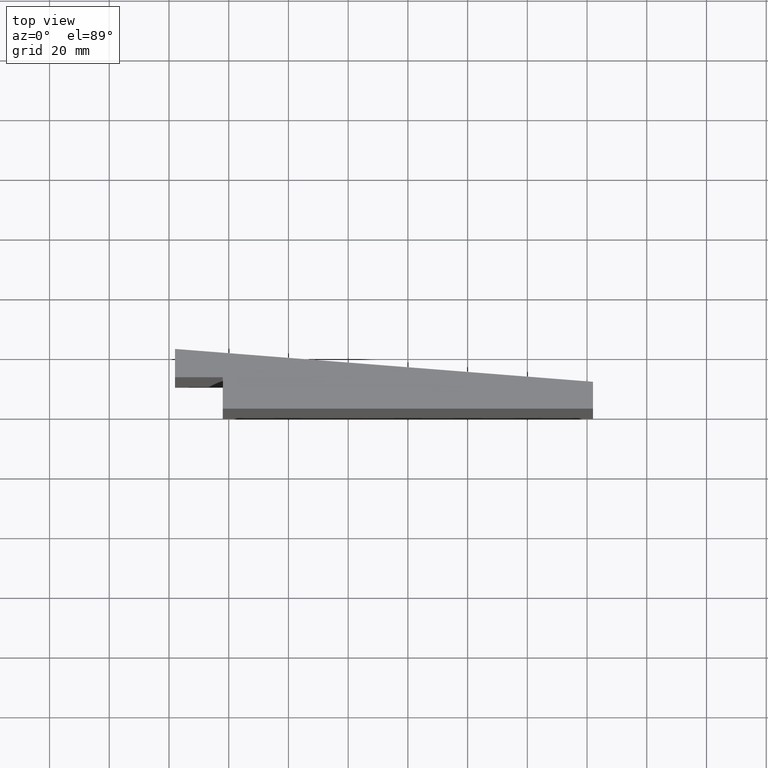
[diagram: clean part render]
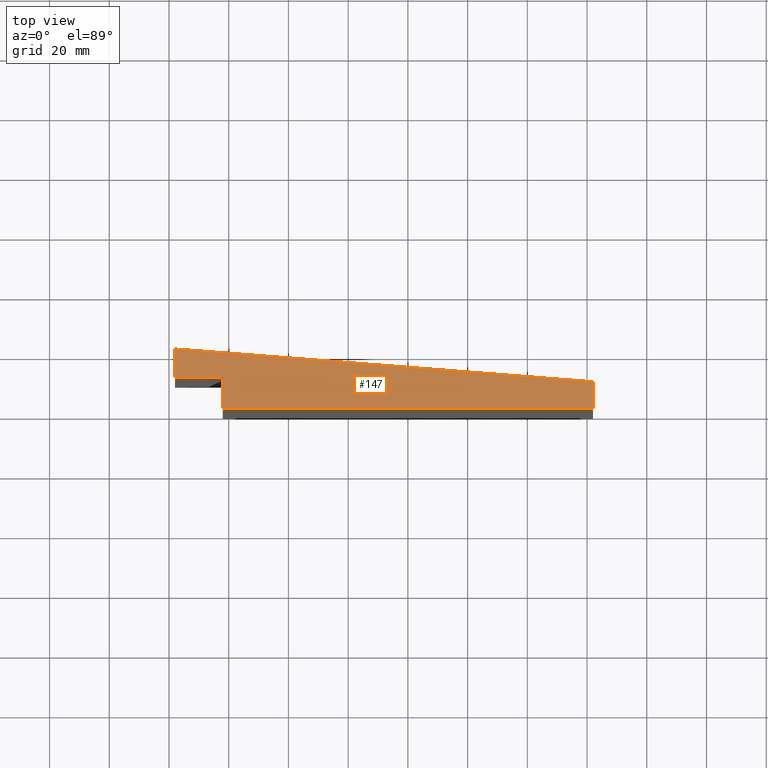
[diagram: same view with one face highlighted and labeled with its STEP entity id]
A machine part, top view. The second image highlights one B-rep face of the part: STEP entity #147.
In plain terms, the highlighted planar face has unit normal (0, 0, 1).
Its self-contained STEP definition (entity closure, byte-faithful):
#21=FACE_OUTER_BOUND('',#29,.T.);
#29=EDGE_LOOP('',(#121,#122,#123,#124,#125,#126));
#33=LINE('',#215,#51);
#36=LINE('',#221,#54);
#39=LINE('',#227,#57);
#42=LINE('',#233,#60);
#45=LINE('',#239,#63);
#48=LINE('',#243,#66);
#51=VECTOR('',#177,10.);
#54=VECTOR('',#182,10.);
#57=VECTOR('',#187,10.);
#60=VECTOR('',#192,10.);
#63=VECTOR('',#197,10.);
#66=VECTOR('',#202,10.);
#69=VERTEX_POINT('',#212);
#70=VERTEX_POINT('',#214);
#72=VERTEX_POINT('',#220);
#74=VERTEX_POINT('',#226);
#76=VERTEX_POINT('',#232);
#78=VERTEX_POINT('',#238);
#81=EDGE_CURVE('',#70,#69,#33,.T.);
#84=EDGE_CURVE('',#72,#70,#36,.T.);
#87=EDGE_CURVE('',#74,#72,#39,.T.);
#90=EDGE_CURVE('',#76,#74,#42,.T.);
#93=EDGE_CURVE('',#78,#76,#45,.T.);
#96=EDGE_CURVE('',#69,#78,#48,.T.);
#121=ORIENTED_EDGE('',*,*,#96,.T.);
#122=ORIENTED_EDGE('',*,*,#93,.T.);
#123=ORIENTED_EDGE('',*,*,#90,.T.);
#124=ORIENTED_EDGE('',*,*,#87,.T.);
#125=ORIENTED_EDGE('',*,*,#84,.T.);
#126=ORIENTED_EDGE('',*,*,#81,.T.);
#139=PLANE('',#169);
#147=ADVANCED_FACE('',(#21),#139,.T.);
#169=AXIS2_PLACEMENT_3D('',#244,#203,#204);
#177=DIRECTION('',(1.,-6.93889390390723E-16,0.));
#182=DIRECTION('',(0.,-1.,0.));
#187=DIRECTION('',(-0.996927484072214,0.0783300166056738,0.));
#192=DIRECTION('',(0.,1.,0.));
#197=DIRECTION('',(1.,1.55227784985289E-16,0.));
#202=DIRECTION('',(5.07530525542929E-15,-1.,0.));
#203=DIRECTION('center_axis',(0.,0.,1.));
#204=DIRECTION('ref_axis',(1.,0.,0.));
#212=CARTESIAN_POINT('',(-62.,10.5,200.));
#214=CARTESIAN_POINT('',(-78.,10.5,200.));
#215=CARTESIAN_POINT('',(-78.,10.5,200.));
#220=CARTESIAN_POINT('',(-78.,20.,200.));
#221=CARTESIAN_POINT('',(-78.,20.,200.));
#226=CARTESIAN_POINT('',(62.,9.00000000000001,200.));
#227=CARTESIAN_POINT('',(62.,9.00000000000001,200.));
#232=CARTESIAN_POINT('',(62.,1.11022302462516E-14,200.));
#233=CARTESIAN_POINT('',(62.,1.11022302462516E-14,200.));
#238=CARTESIAN_POINT('',(-62.,-8.88178419700125E-15,200.));
#239=CARTESIAN_POINT('',(-62.,-8.14601509192424E-15,200.));
#243=CARTESIAN_POINT('',(-62.,10.5,200.));
#244=CARTESIAN_POINT('Origin',(-8.00000000000002,9.99999999999999,200.));